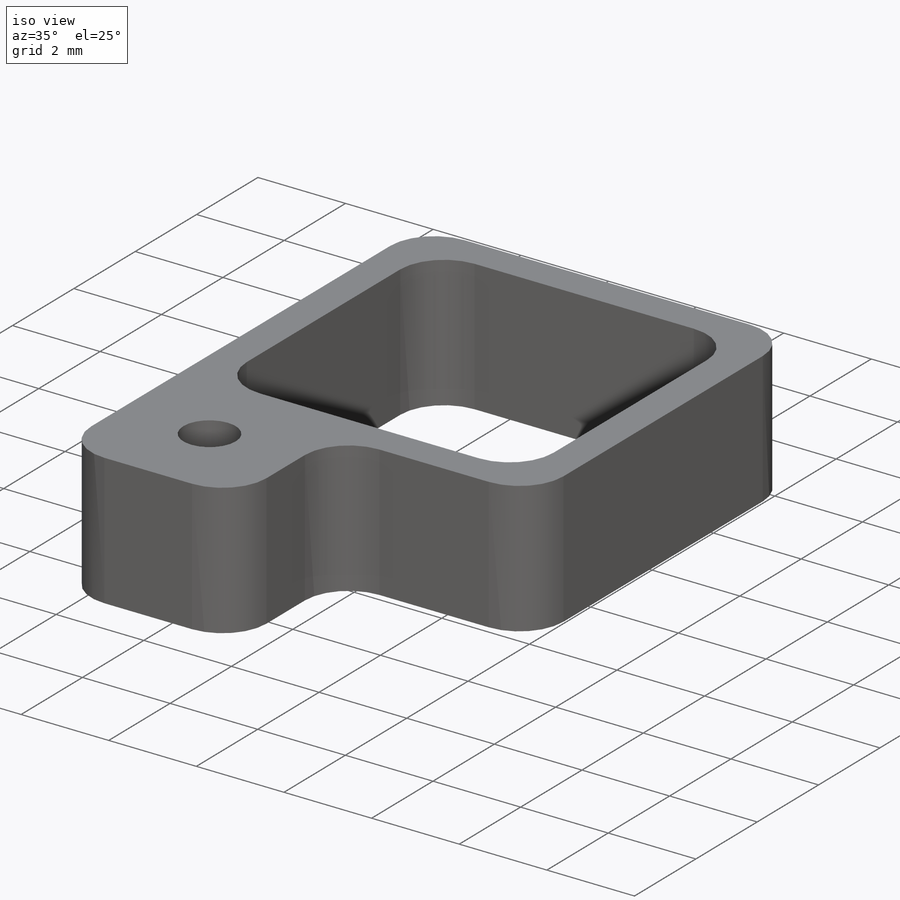
[diagram: iso view]
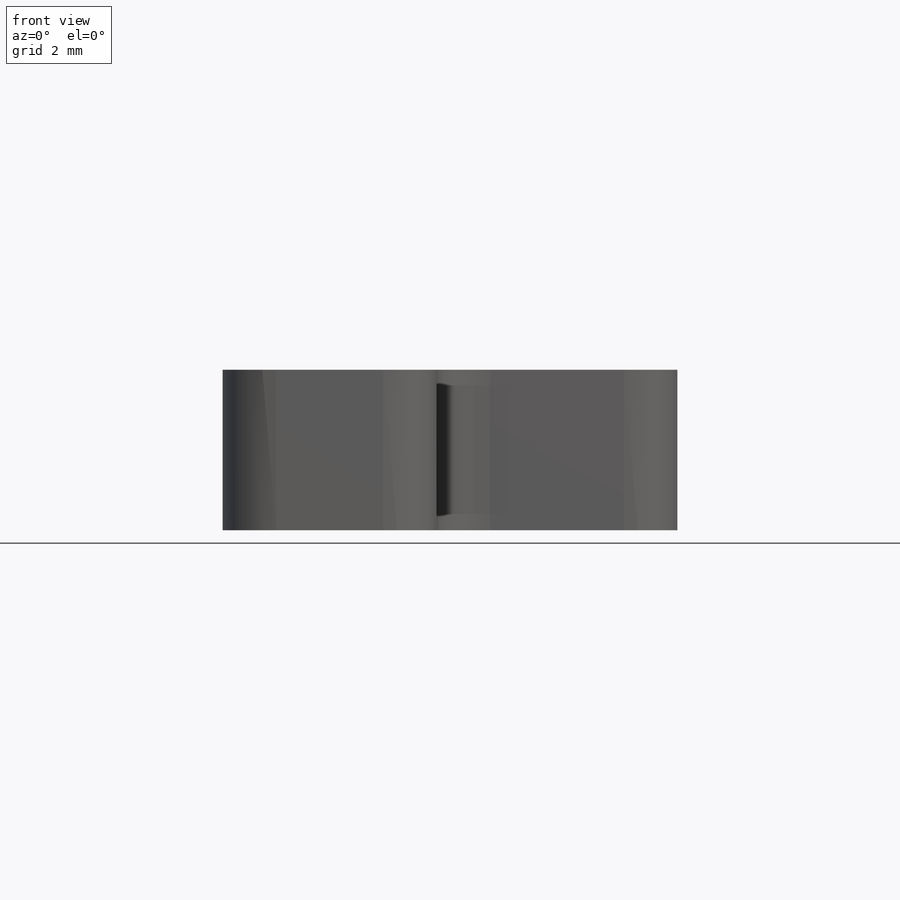
[diagram: front view]
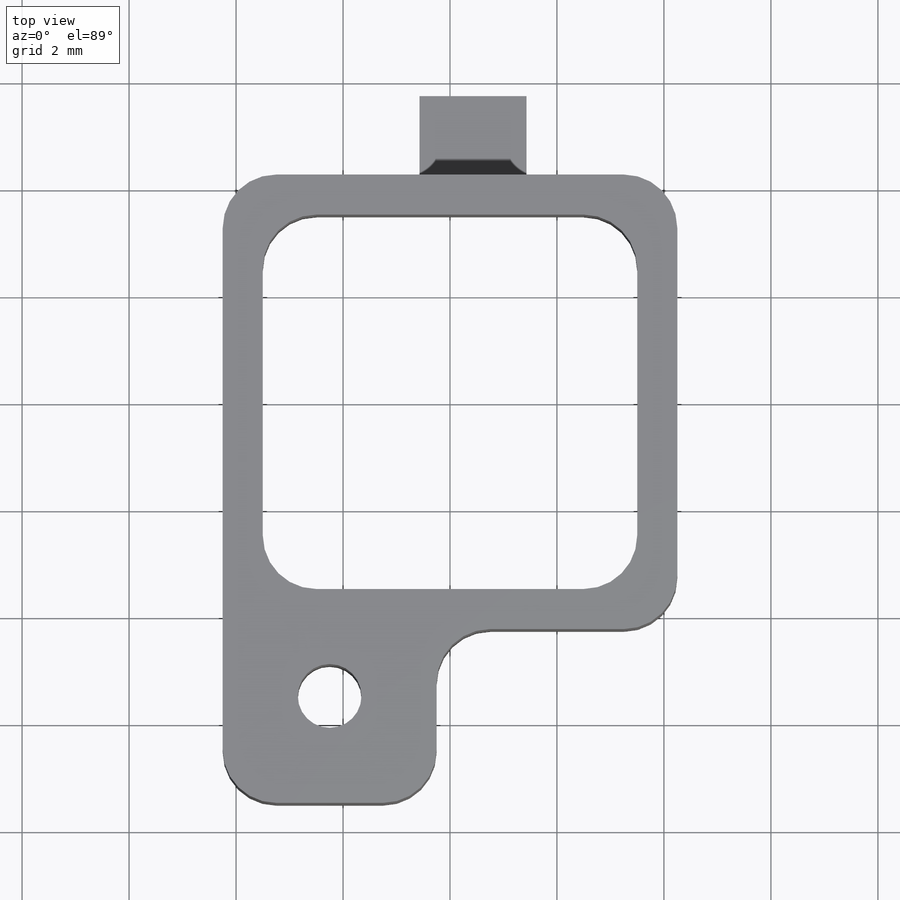
[diagram: top view]
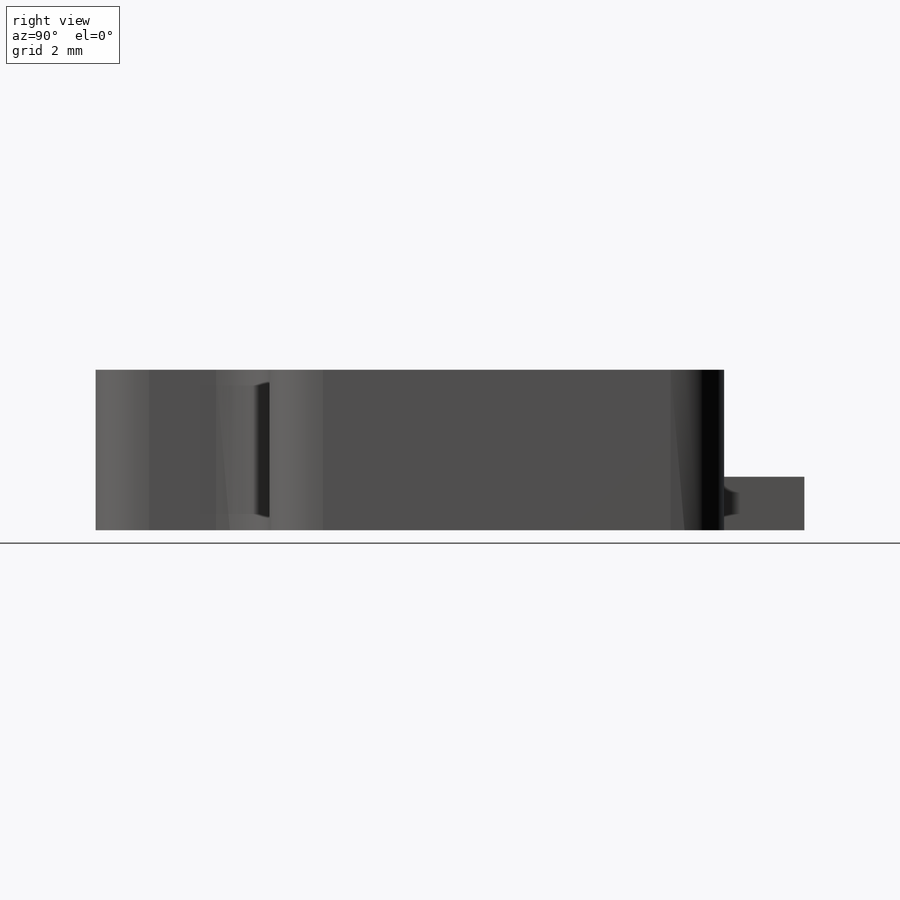
[diagram: right view]
SOLIDWORKS PART (.sldprt)
format: sldprt  version: not decoded by parser v0  size: 240,128 bytes
history: native  units: mm
features: sketch x6, extrude x3, material x1, cut_extrude x1, hole x1, fillet x1 (+16 scaffold rows collapsed)
feature tree (29):
  scaffold x16  (default folders/planes/origin — collapsed)
  material  "Material <not specified>"
  sketch  "Sketch1"  dims[D1=8.5mm D2=8.5mm]
  extrude  "Extrude1"  Depth=3mm
  sketch  "Sketch3"  dims[D1=4.0mm]
  extrude  "Extrude3"  Depth=3.25mm
  sketch  "Sketch2"  dims[D1=7.0mm D2=7.0mm]
  cut_extrude  "Extrude2"  [1 undecoded]
  hole  "#0-80 Tapped Hole1"  Diameter=1.19126mm Depth=3.00005mm
  sketch  "3DSketch2"  dims[D1=2.0mm D2=2.0mm]
  sketch  "Sketch6"  dims[hole-wizard template sketch: 60 standard entries collapsed; hole parameters kept: c18.Thru Tap Drill Depth=~3.00005mm]
  sketch  "Sketch11"  dims[D1=0.5mm D2=2.0mm]
  extrude  "Extrude5"  Depth=1.5mm
  fillet  "Fillet1"  Radius=1mm
decode coverage: 11 of 12 modeling features carry decoded parameters
note: ~ marks probable driven/reference dimensions
note: 1 parameter value undecoded
note: suppression state not decoded; provenance and decode notes live in map.json
